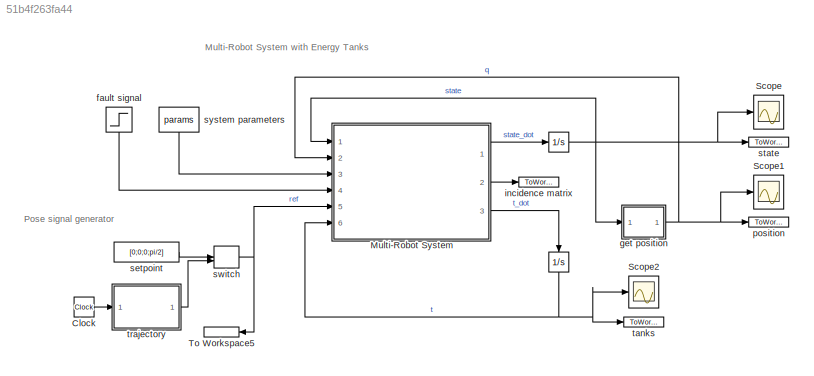
MODEL slx_51b4f263fa44
KIND model
CONFIG AbsTol = auto
CONFIG EnableMultiTasking = off
CONFIG FixedStep = auto
CONFIG MaxStep = auto
CONFIG MinStep = auto
CONFIG RelTol = 1e-3
CONFIG SampleTimeConstraint = Unconstrained
CONFIG SolverName = VariableStepAuto
CONFIG StartTime = 0.0
CONFIG StopTime = T
BLOCK [Integrator]   
  NameLocation = left
  Ports = [1, 1]
BLOCK [Integrator]    
  Ports = [1, 1]
BLOCK [Clock] Clock
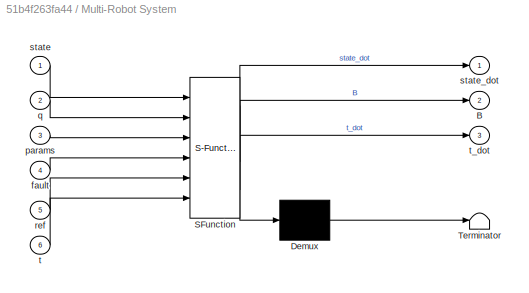
BLOCK [SubSystem] Multi-Robot System
  ErrorFcn = Stateflow.Translate.translate
  PermitHierarchicalResolution = ExplicitOnly
  Ports = [6, 3]
  RequestExecContextInheritance = off
  SFBlockType = MATLAB Function
  TreatAsAtomicUnit = on
BLOCK [Demux] Multi-Robot System/ Demux 
  Outputs = 1
  Ports = [1, 1]
BLOCK [S-Function] Multi-Robot System/ SFunction 
  EnableBusSupport = on
  FunctionName = sf_sfun
  PortCounts = [6 4]
  Ports = [6, 4]
  SFcnIsStateOwnerBlock = off
  SFunctionDeploymentMode = off
  Tag = Stateflow S-Function 2
BLOCK [Terminator] Multi-Robot System/ Terminator 
BLOCK [Outport] Multi-Robot System/B
  Port = 2
BLOCK [Inport] Multi-Robot System/fault
  Port = 4
BLOCK [Inport] Multi-Robot System/params
  Port = 3
BLOCK [Inport] Multi-Robot System/q
  Port = 2
BLOCK [Inport] Multi-Robot System/ref
  Port = 5
BLOCK [Inport] Multi-Robot System/state
BLOCK [Outport] Multi-Robot System/state_dot
BLOCK [Inport] Multi-Robot System/t
  Port = 6
BLOCK [Outport] Multi-Robot System/t_dot
  Port = 3
BLOCK [Scope] Scope
  Floating = off
  NumInputPorts = 1
  Ports = [1]
  ScopeSpecificationString = Simulink.scopes.TimeScopeBlockCfg('CurrentConfiguration', extmgr.ConfigurationSet(extmgr.Configuration('Core','General UI',true),extmgr.Configuration('Core','Source UI',true),extmgr.Configuration('Sources','WiredSimulink',true),extmgr.Configuration('Visuals','Time Domain',true,'SerializedDisplays',{struct('MinYLimReal','-16789718558351373093012643810880019595802744140230017948031093203431333980938...<+5196ch>
BLOCK [Scope] Scope1
  Floating = off
  NumInputPorts = 1
  Ports = [1]
  ScopeSpecificationString = Simulink.scopes.TimeScopeBlockCfg('CurrentConfiguration', extmgr.ConfigurationSet(extmgr.Configuration('Core','General UI',true),extmgr.Configuration('Core','Source UI',true),extmgr.Configuration('Sources','WiredSimulink',true,'DataLoggingVariableName','ScopeData1'),extmgr.Configuration('Visuals','Time Domain',true,'SerializedDisplays',{struct('MinYLimReal','-170.93743','MaxYLimReal','186.52704','...<+2412ch>
BLOCK [Scope] Scope2
  Floating = off
  NumInputPorts = 1
  Ports = [1]
  ScopeSpecificationString = Simulink.scopes.TimeScopeBlockCfg('CurrentConfiguration', extmgr.ConfigurationSet(extmgr.Configuration('Core','General UI',true),extmgr.Configuration('Core','Source UI',true),extmgr.Configuration('Sources','WiredSimulink',true,'DataLoggingVariableName','ScopeData1'),extmgr.Configuration('Visuals','Time Domain',true,'SerializedDisplays',{struct('MinYLimReal','96.77722','MaxYLimReal','129.00501','YL...<+2527ch>
BLOCK [ToWorkspace] To Workspace5
  FixptAsFi = on
  MaxDataPoints = inf
  NameLocation = top
  Ports = [1]
  SampleTime = -1
  SaveFormat = Timeseries
  VariableName = ref
BLOCK [Step] fault signal
  NameLocation = left
  SampleTime = 0
  Time = 25
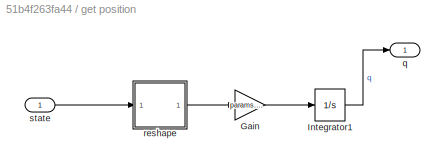
BLOCK [SubSystem] get position
  Ports = [1, 1]
  RequestExecContextInheritance = off
BLOCK [Gain] get position/Gain
  Gain = params.gain
BLOCK [Integrator] get position/Integrator1
  Ports = [1, 1]
BLOCK [Outport] get position/q
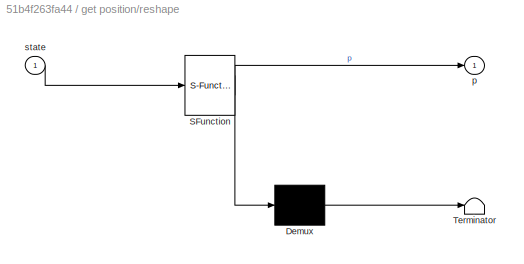
BLOCK [SubSystem] get position/reshape
  ErrorFcn = Stateflow.Translate.translate
  PermitHierarchicalResolution = ExplicitOnly
  Ports = [1, 1]
  RequestExecContextInheritance = off
  SFBlockType = MATLAB Function
  TreatAsAtomicUnit = on
BLOCK [Demux] get position/reshape/ Demux 
  Outputs = 1
  Ports = [1, 1]
BLOCK [S-Function] get position/reshape/ SFunction 
  EnableBusSupport = on
  FunctionName = sf_sfun
  PortCounts = [1 2]
  Ports = [1, 2]
  SFcnIsStateOwnerBlock = off
  SFunctionDeploymentMode = off
  Tag = Stateflow S-Function 5
BLOCK [Terminator] get position/reshape/ Terminator 
BLOCK [Outport] get position/reshape/p
BLOCK [Inport] get position/reshape/state
BLOCK [Inport] get position/state
BLOCK [ToWorkspace] incidence matrix
  FixptAsFi = on
  MaxDataPoints = inf
  Ports = [1]
  SampleTime = -1
  SaveFormat = Timeseries
  VariableName = B
BLOCK [ToWorkspace] position
  FixptAsFi = on
  MaxDataPoints = inf
  Ports = [1]
  SampleTime = -1
  SaveFormat = Timeseries
  VariableName = q
BLOCK [Constant] setpoint
  Value = [0;0;0;pi/2]
BLOCK [ToWorkspace] state
  FixptAsFi = on
  MaxDataPoints = inf
  Ports = [1]
  SampleTime = -1
  SaveFormat = Timeseries
  VariableName = state
BLOCK [ManualSwitch] switch
  CurrentSetting = 0
BLOCK [Constant] system parameters 
  NameLocation = right
  OutDataTypeStr = Bus: params_bus
  Value = params
BLOCK [ToWorkspace] tanks
  FixptAsFi = on
  MaxDataPoints = inf
  Ports = [1]
  SampleTime = -1
  SaveFormat = Timeseries
  VariableName = t
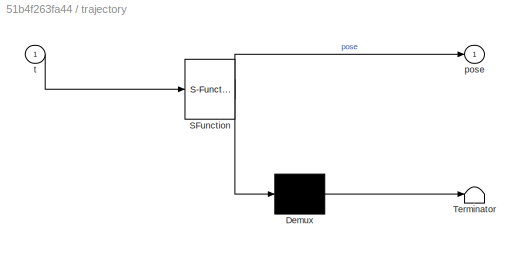
BLOCK [SubSystem] trajectory
  ErrorFcn = Stateflow.Translate.translate
  PermitHierarchicalResolution = ExplicitOnly
  Ports = [1, 1]
  RequestExecContextInheritance = off
  SFBlockType = MATLAB Function
  TreatAsAtomicUnit = on
BLOCK [Demux] trajectory/ Demux 
  Outputs = 1
  Ports = [1, 1]
BLOCK [S-Function] trajectory/ SFunction 
  EnableBusSupport = on
  FunctionName = sf_sfun
  PortCounts = [1 2]
  Ports = [1, 2]
  SFcnIsStateOwnerBlock = off
  SFunctionDeploymentMode = off
  Tag = Stateflow S-Function 1
BLOCK [Terminator] trajectory/ Terminator 
BLOCK [Outport] trajectory/pose
BLOCK [Inport] trajectory/t
ANNOTATION (root): Multi-Robot System with Energy Tanks
ANNOTATION (root): Pose signal generator
NET    :1 -> Multi-Robot System:1, Scope:1, get position:1, state:1
NET   :1 -> Multi-Robot System:6, Scope2:1, tanks:1
LINE Clock:1 -> trajectory:1
LINE Multi-Robot System:1 ->    :1
LINE Multi-Robot System:2 -> incidence matrix:1
LINE Multi-Robot System:3 ->   :1
LINE fault signal:1 -> Multi-Robot System:4
LINE get position/Gain:1 -> get position/Integrator1:1
LINE get position/Integrator1:1 -> get position/q:1
LINE get position/reshape:1 -> get position/Gain:1
LINE get position/state:1 -> get position/reshape:1
NET get position:1 -> Multi-Robot System:2, Scope1:1, position:1
LINE setpoint:1 -> switch:1
NET switch:1 -> Multi-Robot System:5, To Workspace5:1
LINE system parameters :1 -> Multi-Robot System:3
LINE trajectory:1 -> switch:2
note: NET lines group one-source signal fan-out (src -> all destinations, sorted); 1:1 wires keep LINE
CHART trajectory states=1 transitions=1
  STATE_LABEL 'eML_blk_kernel()'
  STATE_LABEL 'SCRIPT:\n%% generate reference trajectory\nfunction pose = trajectory(t)\nt1 = 5;\nt_fault = 25;\nt_end = 55;\npause = 5;\n\nw = 0.25;\nphi = -w*t1;\nA = 80;\nz_vel = 1;\n\ny = [0;0;0];\ntheta = pi/2;\nif(t>=t1 && t<t_fault)\n    y = [A*sin(w*t+phi); -A*cos(w*t+phi); z_vel*t] - [A*sin(w*t1+phi); -A*cos(w*t1+phi); z_vel*t1];\n    theta = atan2(A*sin(w*t+phi), A*cos(w*t+phi));\nelseif(t>=t_fault && t<t_fault+pause)\n ...<+662ch>'
CHART Multi-Robot System states=1 transitions=1
  STATE_LABEL 'eML_blk_kernel()'
  STATE_LABEL 'SCRIPT:\nfunction [state_dot,B,t_dot] = closedLoopSystem(state, q, params, fault, ref, t)\nn = 3;                      % task space\nN = params.N;               % number of robots\nfaulted_robot = params.faulted_robot;\n\n%% initialize some matrices\np = state(1:n*N);           % robots momenta\nm = params.m;               % robots masses\nM = zeros(n*N, n*N);      \t% inertia matrix\nd = params.d;          ...<+3608ch>'
CHART get position/reshape states=1 transitions=1
  STATE_LABEL 'eML_blk_kernel()'
  STATE_LABEL "SCRIPT:\nfunction p = reshape(state)\n    %n = 3;\n    %N = roots([n/2, n/2, -size(state,1)]).'*(roots([n/2, n/2, -size(state,1)])>0);\n    N = 5;\n    p = state(1:3*5);\nend\n\n\n\n\n%"
CHART  states=0 transitions=0
CHART  states=0 transitions=0
CHART  states=0 transitions=0
